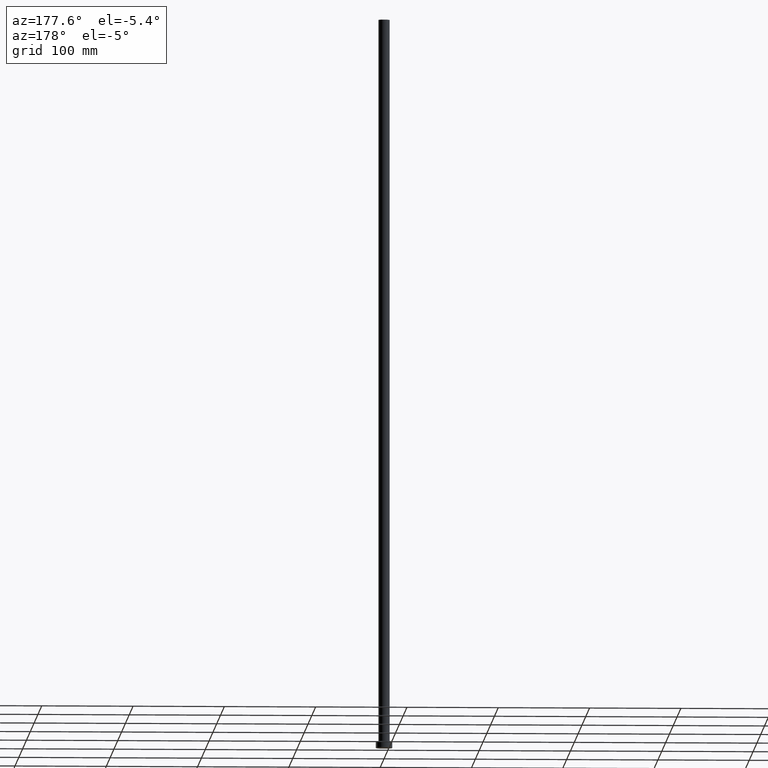
[diagram: clean part render]
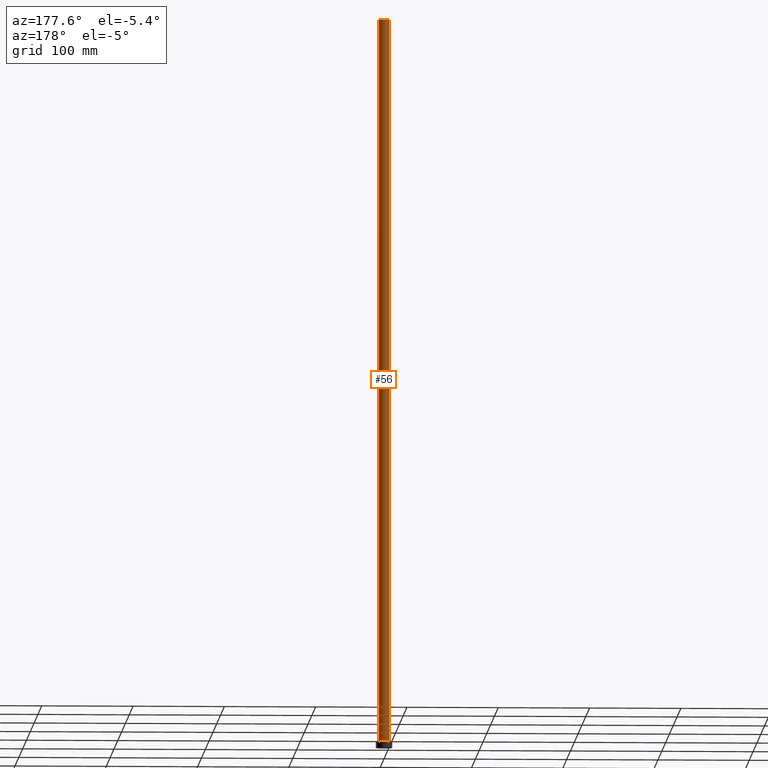
[diagram: same view with one face highlighted and labeled with its STEP entity id]
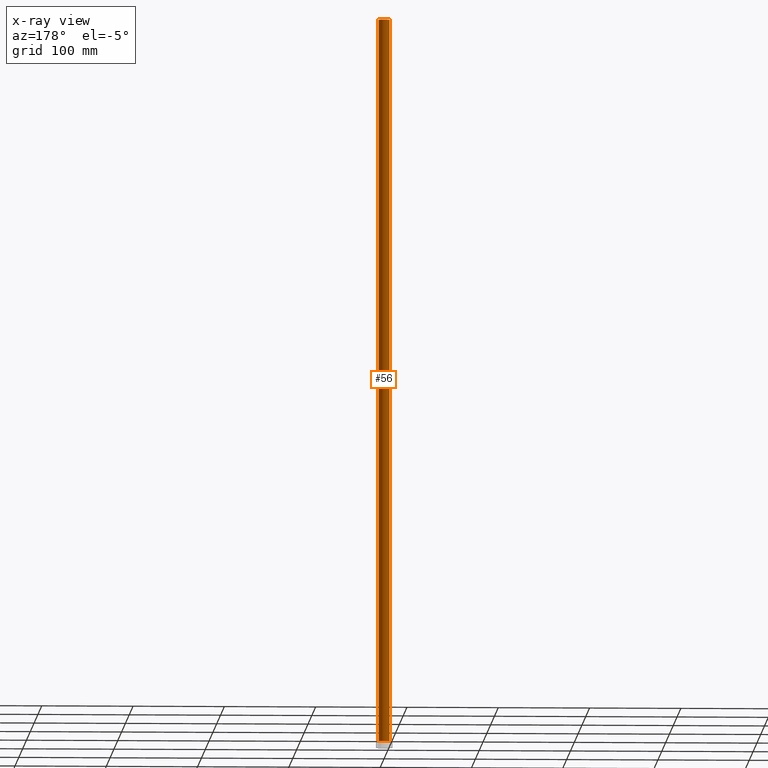
[diagram: x-ray of the same camera — body ghosted, the highlighted face saturated]
A machine part, auxiliary view. The second image highlights one B-rep face of the part: STEP entity #56.
The next image is the same camera in x-ray: the body ghosted, the highlighted face saturated — about 0% of this face is hidden behind the body in this view.
In plain terms, the highlighted cylindrical surface (edge-blend (fillet) strip) has radius 6.1 mm, axis along (-0, -0, -1).
Its self-contained STEP definition (entity closure, byte-faithful):
#23 = CARTESIAN_POINT ( 'NONE',  ( 0.000000000000000000, 0.000000000000000000, 800.0000000000000000 ) ) ;
#31 = VECTOR ( 'NONE', #114, 1000.000000000000000 ) ;
#36 = CARTESIAN_POINT ( 'NONE',  ( -6.099999999999999645, 0.000000000000000000, 7.000000000000000000 ) ) ;
#37 = AXIS2_PLACEMENT_3D ( 'NONE', #23, #108, #199 ) ;
#44 = ORIENTED_EDGE ( 'NONE', *, *, #224, .T. ) ;
#45 = AXIS2_PLACEMENT_3D ( 'NONE', #229, #159, #47 ) ;
#47 = DIRECTION ( 'NONE',  ( 1.000000000000000000, 0.000000000000000000, 0.000000000000000000 ) ) ;
#49 = CYLINDRICAL_SURFACE ( 'NONE', #140, 6.099999999999999645 ) ;
#56 = ADVANCED_FACE ( 'NONE', ( #222 ), #49, .T. ) ;
#71 = EDGE_LOOP ( 'NONE', ( #205, #150, #44, #101 ) ) ;
#76 = LINE ( 'NONE', #118, #31 ) ;
#92 = VECTOR ( 'NONE', #212, 1000.000000000000000 ) ;
#98 = CARTESIAN_POINT ( 'NONE',  ( 6.099999999999999645, 7.470345474798854293E-16, 800.0000000000000000 ) ) ;
#101 = ORIENTED_EDGE ( 'NONE', *, *, #120, .F. ) ;
#108 = DIRECTION ( 'NONE',  ( 0.000000000000000000, 0.000000000000000000, 1.000000000000000000 ) ) ;
#110 = VERTEX_POINT ( 'NONE', #98 ) ;
#114 = DIRECTION ( 'NONE',  ( -0.000000000000000000, -0.000000000000000000, -1.000000000000000000 ) ) ;
#118 = CARTESIAN_POINT ( 'NONE',  ( 6.099999999999999645, 7.470345474798854293E-16, 800.0000000000000000 ) ) ;
#120 = EDGE_CURVE ( 'NONE', #151, #124, #249, .T. ) ;
#124 = VERTEX_POINT ( 'NONE', #36 ) ;
#130 = DIRECTION ( 'NONE',  ( -0.000000000000000000, -0.000000000000000000, -1.000000000000000000 ) ) ;
#139 = EDGE_CURVE ( 'NONE', #110, #185, #76, .T. ) ;
#140 = AXIS2_PLACEMENT_3D ( 'NONE', #243, #130, #206 ) ;
#150 = ORIENTED_EDGE ( 'NONE', *, *, #139, .T. ) ;
#151 = VERTEX_POINT ( 'NONE', #230 ) ;
#159 = DIRECTION ( 'NONE',  ( 0.000000000000000000, 0.000000000000000000, 1.000000000000000000 ) ) ;
#161 = CIRCLE ( 'NONE', #37, 6.099999999999999645 ) ;
#166 = CIRCLE ( 'NONE', #45, 6.099999999999999645 ) ;
#185 = VERTEX_POINT ( 'NONE', #193 ) ;
#193 = CARTESIAN_POINT ( 'NONE',  ( 6.099999999999999645, 7.470345474798854293E-16, 7.000000000000000000 ) ) ;
#199 = DIRECTION ( 'NONE',  ( 1.000000000000000000, 0.000000000000000000, 0.000000000000000000 ) ) ;
#205 = ORIENTED_EDGE ( 'NONE', *, *, #231, .F. ) ;
#206 = DIRECTION ( 'NONE',  ( -1.000000000000000000, 0.000000000000000000, 0.000000000000000000 ) ) ;
#212 = DIRECTION ( 'NONE',  ( -0.000000000000000000, -0.000000000000000000, -1.000000000000000000 ) ) ;
#222 = FACE_OUTER_BOUND ( 'NONE', #71, .T. ) ;
#224 = EDGE_CURVE ( 'NONE', #185, #124, #166, .T. ) ;
#229 = CARTESIAN_POINT ( 'NONE',  ( 0.000000000000000000, 0.000000000000000000, 7.000000000000000000 ) ) ;
#230 = CARTESIAN_POINT ( 'NONE',  ( -6.099999999999999645, 0.000000000000000000, 800.0000000000000000 ) ) ;
#231 = EDGE_CURVE ( 'NONE', #110, #151, #161, .T. ) ;
#243 = CARTESIAN_POINT ( 'NONE',  ( 0.000000000000000000, 0.000000000000000000, 800.0000000000000000 ) ) ;
#246 = CARTESIAN_POINT ( 'NONE',  ( -6.099999999999999645, 0.000000000000000000, 800.0000000000000000 ) ) ;
#249 = LINE ( 'NONE', #246, #92 ) ;